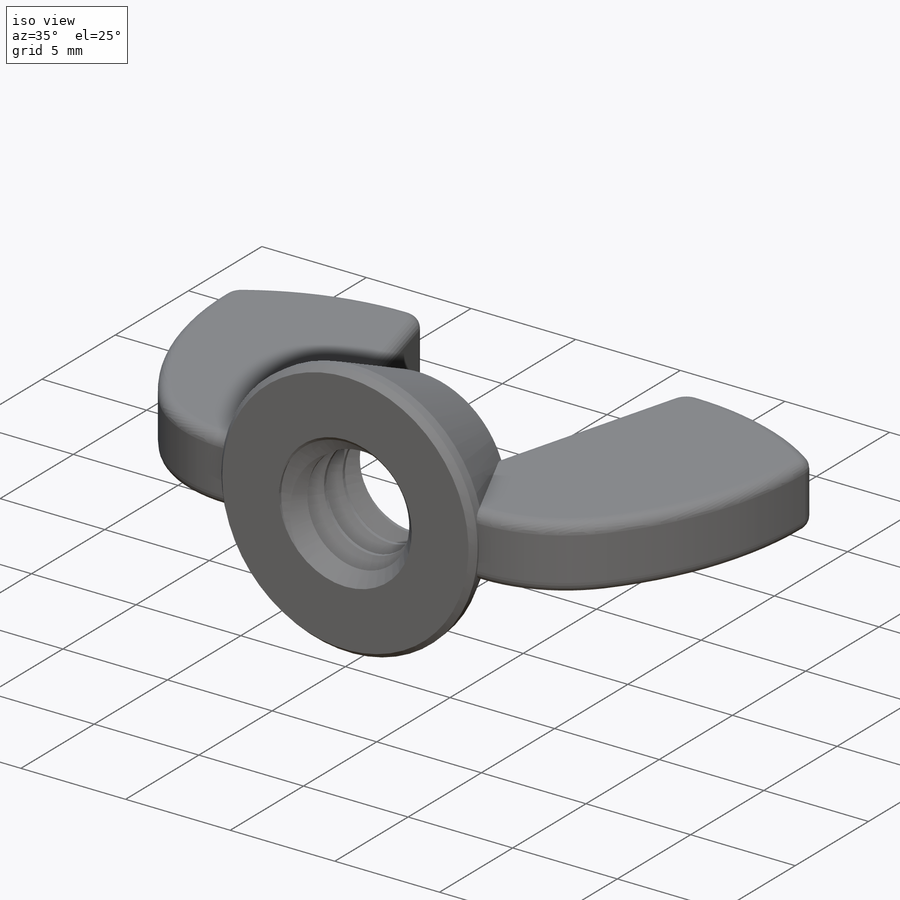
[diagram: iso view]
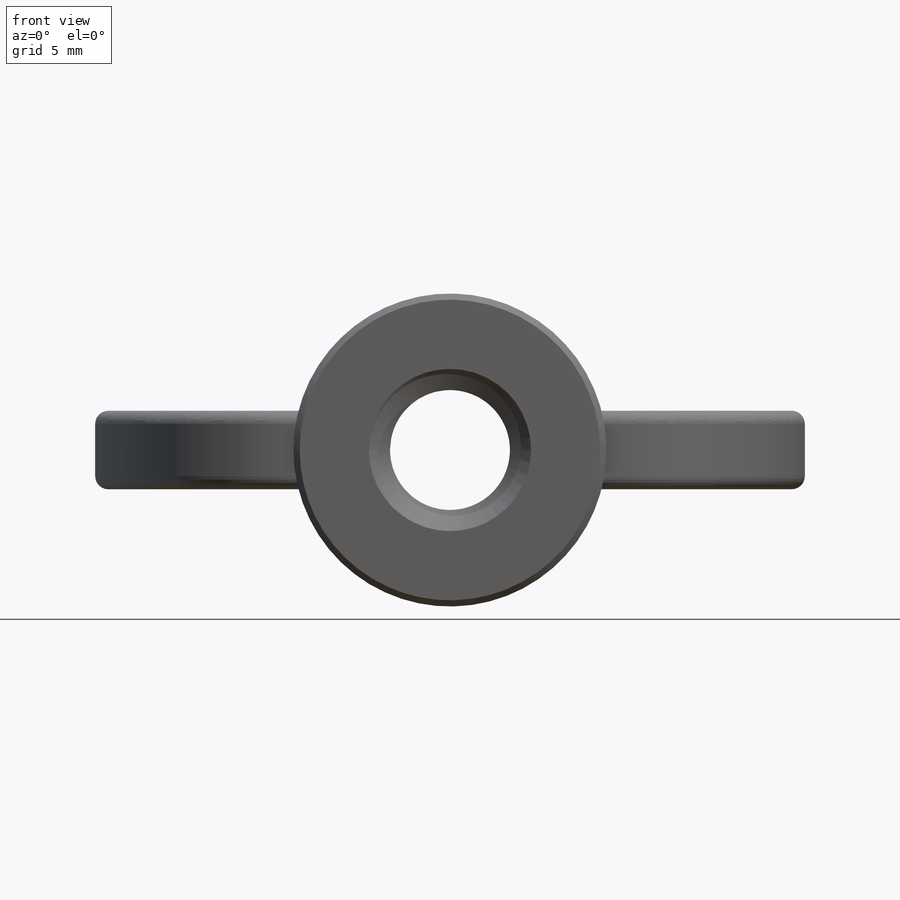
[diagram: front view]
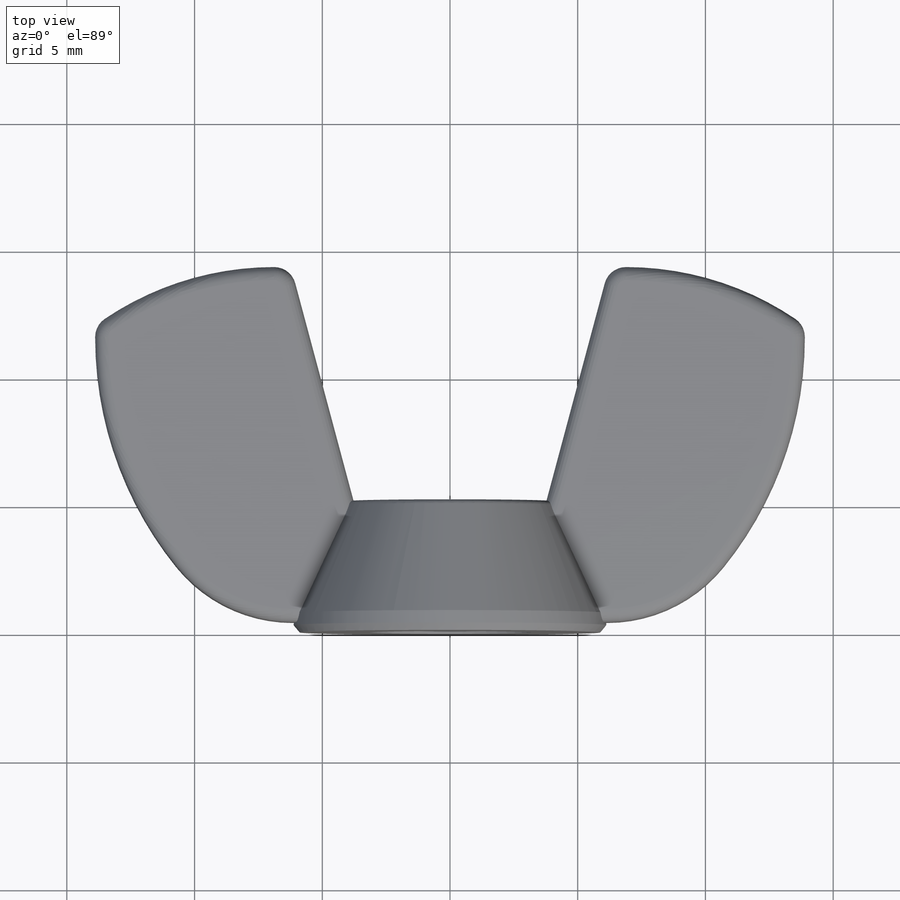
[diagram: top view]
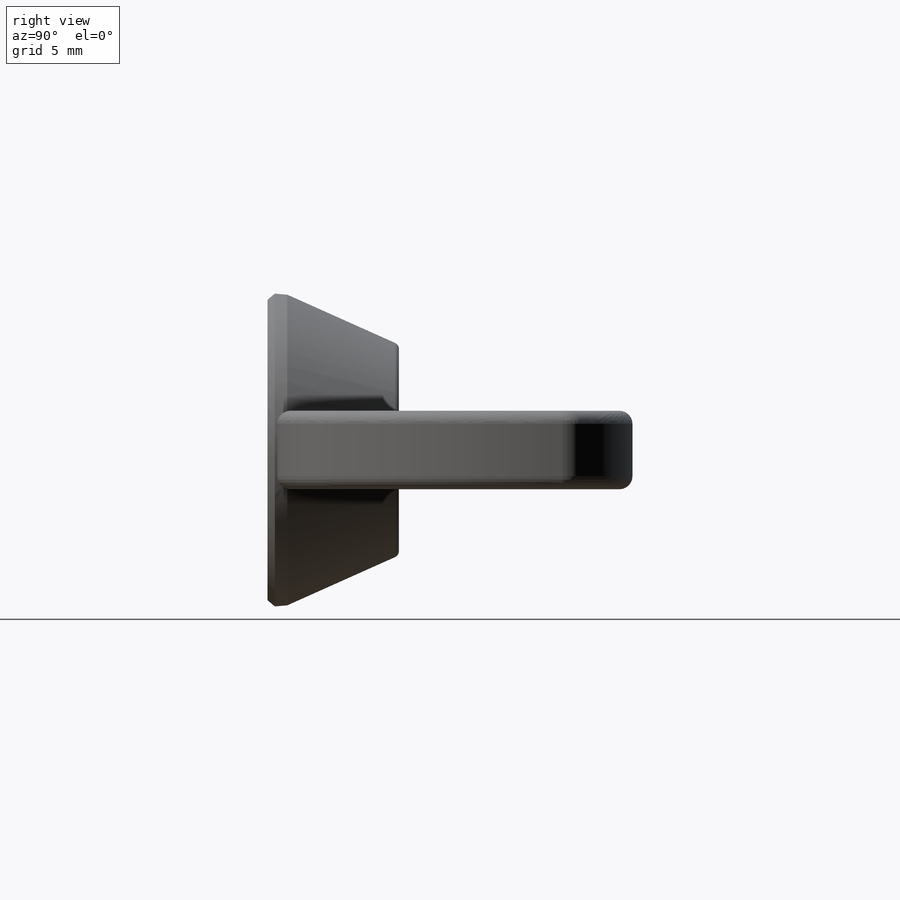
[diagram: right view]
SOLIDWORKS PART (.sldprt)
format: sldprt  version: not decoded by parser v0  size: 622,080 bytes
history: native  units: mm
features: sketch x14, cut_extrude x5, extrude x3, fillet x2, material x1, helix x1, sweep x1, plane x1, chamfer x1, mirror x1, boolean_combine x1 (+11 scaffold rows collapsed)
feature tree (42):
  scaffold x11  (default folders/planes/origin — collapsed)
  material  "Material <not specified>"
  sketch  "Sketch1"  dims[thread dia=6.35mm c=~12.303125mm]
  sketch  "Sketch2"  dims[c1.D6=2.032mm c1.D7=1.778mm c2.D6=~1.708767mm c2.A=~27.78125mm c2.B=14.2875mm c2.D1=30.1625mm c3.D1=5.0deg c3.D2=5.1435mm c3.D3=~12.685242mm c4.D3=10.0deg c4.D4=~8.396007mm c5.D3=~15.08125mm c6.D3=10.0deg c6.D1=~0.771525mm c7.D3=16.002mm c8.D3=~24.076848deg c8.D5=~0.385762mm c8.D6=~5.153012mm c9.D6=15.0deg c9.D8=0.254mm c9.D7=16.002mm c10.D7=15.0deg c10.D8=~30.95625mm c11.D8=17.0deg c11.D9=~7.556406mm c11.D7=~6.740128mm c12.D7=15.0deg]
  sketch  "Sketch13"
  extrude  "Extrude2"  Depth=3.075781mm
  sketch  "Sketch3"
  extrude  "Extrude1"  [1 undecoded]
  sketch  "Sketch15"  dims[D1=0.0mm]
  extrude  "Extrude3"  [1 undecoded]
  fillet  "Fillet3"  Radius=0.254mm
  sketch  "Sketch12"  dims[D1=~12.168126mm]
  sketch  "Sketch4"
  cut_extrude  "Cut-Extrude1"  [1 undecoded]
  sketch  "Sketch5"
  helix  "Helix/Spiral1"  Pitch=8.3185mm pitch=1.27mm
  sketch  "Sketch6"  dims[c1.D1=~1.812593mm c2.D1=60.0deg c2.D2=~0.15875mm c2.D3=0.635mm]
  sweep  "Sweep1"
  sketch  "Sketch7"  dims[D1=0.0mm]
  cut_extrude  "Cut-Extrude2"  [1 undecoded]
  plane  "Plane1"
  sketch  "Sketch8"  dims[D1=0.0mm]
  cut_extrude  "Cut-Extrude3"  [1 undecoded]
  sketch  "Sketch9"  dims[D1=0.0mm]
  cut_extrude  "Cut-Extrude4"  [1 undecoded]
  sketch  "Sketch11"  dims[D1=0.0508mm]
  cut_extrude  "Cut-Extrude5"  [1 undecoded]
  chamfer  "Chamfer1"  Distance=0.289322mm Angle=45deg
  fillet  "Fillet4"  Radius=0.51263mm
  mirror  "Mirror6"
  boolean_combine  "Combine2"
  sketch  "Sketch16"  dims[D1=~12.303125mm]
decode coverage: 15 of 29 modeling features carry decoded parameters
note: ~ marks probable driven/reference dimensions
note: 7 parameter values undecoded
summary: no parameter record found for 7 features
note: suppression state not decoded; provenance and decode notes live in map.json
